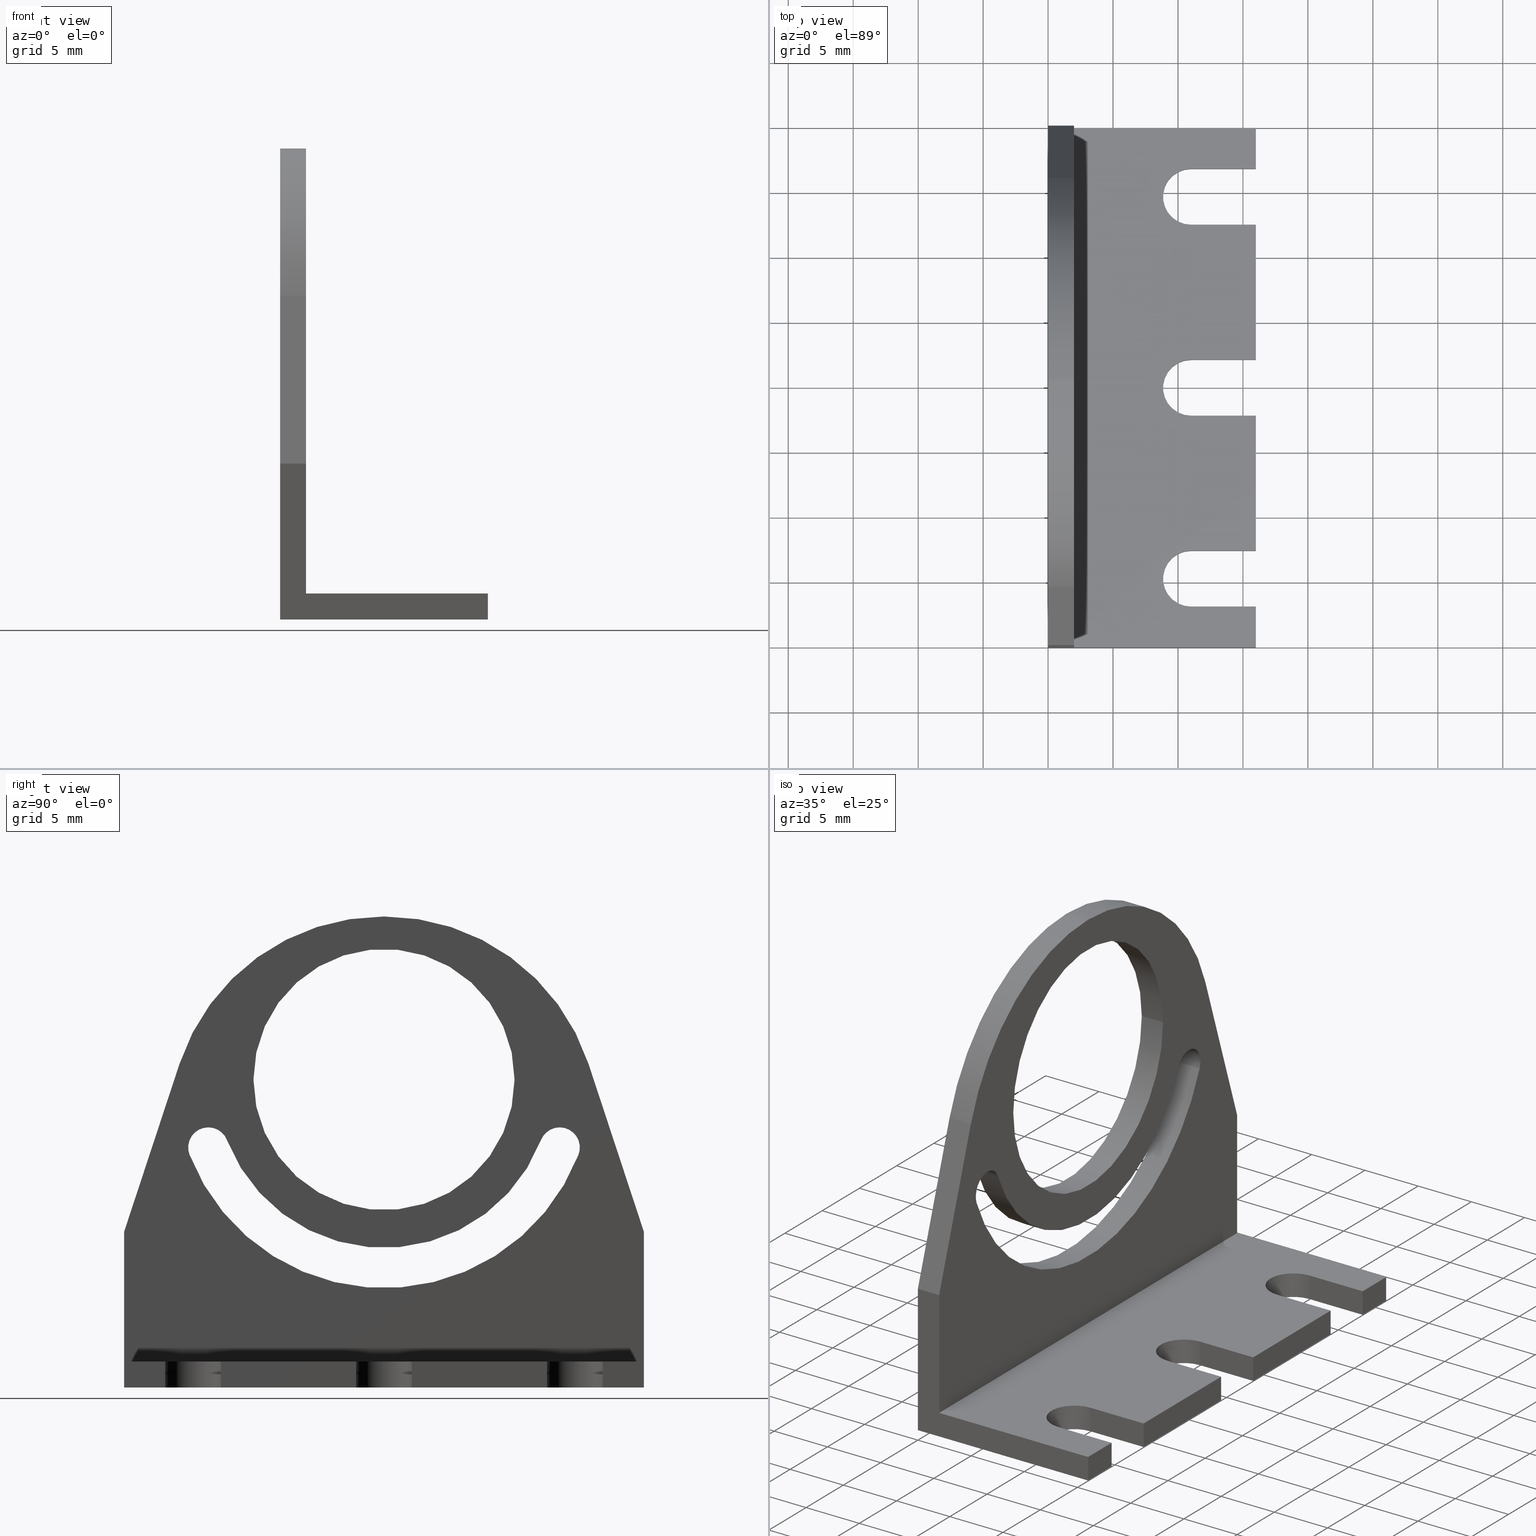
[diagram: canonical four-view strip — front | top / right | iso, engineering-drawing reading convention]
A machine part, canonical four-view strip (front | top / right | iso — engineering-drawing reading convention). The complete STEP part file that produces these views, byte-faithful:
ISO-10303-21;
HEADER;
FILE_DESCRIPTION(('Creo Elements/Direct Modeling STEP Export'),'2;1');
FILE_NAME(
'C:/temp/JobSpoolerServerData/JobServer Files/aaffb14d-8220-4899-98a6-cd
3d9a9d57d0/work/output/model.stp','2019-07-30T19:59:24',(''),(''),
'Creo Elements/Direct Modeling STEP processor for AP214 (Solid Model)',
'Creo Elements/Direct Modeling 20.1A  29-Sep-2018 (C) Parametric Technol
ogy GmbH','');
FILE_SCHEMA(('AUTOMOTIVE_DESIGN { 1 0 10303 214 1 1 1 1 }'));
ENDSEC;
DATA;
#10=CARTESIAN_POINT('',(-20.,-2.,16.));
#20=DIRECTION('',(3.46944695195361E-16,-1.31089490766937E-16,1.));
#30=DIRECTION('',(1.,0.,-3.46944695195361E-16));
#40=AXIS2_PLACEMENT_3D('',#10,#20,#30);
#50=PLANE('',#40);
#60=CARTESIAN_POINT('',(12.55,0.,16.));
#70=DIRECTION('',(2.46519032881566E-32,1.,1.31089490766937E-16));
#80=VECTOR('',#70,1.);
#90=LINE('',#60,#80);
#100=CARTESIAN_POINT('',(12.55,-2.,16.));
#110=VERTEX_POINT('',#100);
#120=CARTESIAN_POINT('',(12.55,-1.82477793007524E-15,16.));
#130=VERTEX_POINT('',#120);
#140=EDGE_CURVE('',#110,#130,#90,.T.);
#150=ORIENTED_EDGE('',*,*,#140,.T.);
#160=CARTESIAN_POINT('',(0.,-2.,16.));
#170=DIRECTION('',(1.,7.39557098644699E-32,-3.46944695195361E-16));
#180=VECTOR('',#170,1.);
#190=LINE('',#160,#180);
#200=CARTESIAN_POINT('',(2.15,-2.,16.));
#210=VERTEX_POINT('',#200);
#220=EDGE_CURVE('',#210,#110,#190,.T.);
#230=ORIENTED_EDGE('',*,*,#220,.T.);
#240=CARTESIAN_POINT('',(2.15,0.,16.));
#250=DIRECTION('',(2.46519032881566E-32,1.,1.31089490766937E-16));
#260=VECTOR('',#250,1.);
#270=LINE('',#240,#260);
#280=CARTESIAN_POINT('',(2.15,-1.82477793007524E-15,16.));
#290=VERTEX_POINT('',#280);
#300=EDGE_CURVE('',#210,#290,#270,.T.);
#310=ORIENTED_EDGE('',*,*,#300,.F.);
#320=CARTESIAN_POINT('',(0.,-1.82477793007524E-15,16.));
#330=DIRECTION('',(1.,7.39557098644699E-32,-3.46944695195361E-16));
#340=VECTOR('',#330,1.);
#350=LINE('',#320,#340);
#360=EDGE_CURVE('',#290,#130,#350,.T.);
#370=ORIENTED_EDGE('',*,*,#360,.F.);
#380=EDGE_LOOP('',(#370,#310,#230,#150));
#390=FACE_OUTER_BOUND('',#380,.T.);
#400=ADVANCED_FACE('',(#390),#50,.T.);
#410=COLOUR_RGB('',0.69803923368454,0.725490212440491,0.725490212440491)
;
#420=FILL_AREA_STYLE_COLOUR('',#410);
#430=FILL_AREA_STYLE('',(#420));
#440=SURFACE_STYLE_FILL_AREA(#430);
#450=SURFACE_SIDE_STYLE('',(#440));
#460=SURFACE_STYLE_USAGE(.BOTH.,#450);
#470=PRESENTATION_STYLE_ASSIGNMENT((#460));
#480=CARTESIAN_POINT('',(20.,3.65768059373703E-17,1.80088514248714));
#490=DIRECTION('',(1.70553012815438E-32,1.,1.31089490766937E-16));
#500=DIRECTION('',(0.,-1.31089490766937E-16,1.));
#510=AXIS2_PLACEMENT_3D('',#480,#490,#500);
#520=PLANE('',#510);
#530=CARTESIAN_POINT('',(0.,-1.82477793007524E-15,16.));
#540=DIRECTION('',(1.,7.39557098644699E-32,-3.46944695195361E-16));
#550=VECTOR('',#540,1.);
#560=LINE('',#530,#550);
#570=CARTESIAN_POINT('',(16.85,-1.82477793007524E-15,16.));
#580=VERTEX_POINT('',#570);
#590=CARTESIAN_POINT('',(20.,-1.82477793007524E-15,16.));
#600=VERTEX_POINT('',#590);
#610=EDGE_CURVE('',#580,#600,#560,.T.);
#620=ORIENTED_EDGE('',*,*,#610,.T.);
#630=CARTESIAN_POINT('',(16.85,2.72653922195752E-16,0.));
#640=DIRECTION('',(0.,1.31089490766937E-16,-1.));
#650=VECTOR('',#640,1.);
#660=LINE('',#630,#650);
#670=CARTESIAN_POINT('',(16.85,-1.16933047624056E-15,11.));
#680=VERTEX_POINT('',#670);
#690=EDGE_CURVE('',#580,#680,#660,.T.);
#700=ORIENTED_EDGE('',*,*,#690,.F.);
#710=CARTESIAN_POINT('',(14.7,-1.66533453693773E-15,11.));
#720=DIRECTION('',(-3.42381711077589E-32,-1.,-1.31089490766937E-16));
#730=DIRECTION('',(-1.,1.00900813458502E-30,-7.43591235097779E-15));
#740=AXIS2_PLACEMENT_3D('',#710,#720,#730);
#750=CIRCLE('',#740,2.15);
#760=CARTESIAN_POINT('',(12.55,-1.22124532708767E-15,11.));
#770=VERTEX_POINT('',#760);
#780=EDGE_CURVE('',#770,#680,#750,.T.);
#790=ORIENTED_EDGE('',*,*,#780,.T.);
#800=CARTESIAN_POINT('',(12.55,2.72653922195752E-16,0.));
#810=DIRECTION('',(-2.42618667968785E-16,-1.31089490766937E-16,1.));
#820=VECTOR('',#810,1.);
#830=LINE('',#800,#820);
#840=EDGE_CURVE('',#770,#130,#830,.T.);
#850=ORIENTED_EDGE('',*,*,#840,.F.);
#860=ORIENTED_EDGE('',*,*,#360,.T.);
#870=CARTESIAN_POINT('',(2.15,2.72653922195753E-16,0.));
#880=DIRECTION('',(-2.60208521396521E-16,-1.31089490766937E-16,1.));
#890=VECTOR('',#880,1.);
#900=LINE('',#870,#890);
#910=CARTESIAN_POINT('',(2.15,-1.22124532708767E-15,11.));
#920=VERTEX_POINT('',#910);
#930=EDGE_CURVE('',#920,#290,#900,.T.);
#940=ORIENTED_EDGE('',*,*,#930,.T.);
#950=CARTESIAN_POINT('',(1.70553012815438E-32,-1.66533453693773E-15,11.)
);
#960=DIRECTION('',(0.,-1.,-1.31089490766937E-16));
#970=DIRECTION('',(-1.,0.,0.));
#980=AXIS2_PLACEMENT_3D('',#950,#960,#970);
#990=CIRCLE('',#980,2.15);
#1000=CARTESIAN_POINT('',(-2.15,-1.22124532708767E-15,11.));
#1010=VERTEX_POINT('',#1000);
#1020=EDGE_CURVE('',#1010,#920,#990,.T.);
#1030=ORIENTED_EDGE('',*,*,#1020,.T.);
#1040=CARTESIAN_POINT('',(-2.15,2.72653922195753E-16,0.));
#1050=DIRECTION('',(3.46944695195362E-16,1.31089490766937E-16,-1.));
#1060=VECTOR('',#1050,1.);
#1070=LINE('',#1040,#1060);
#1080=CARTESIAN_POINT('',(-2.15000000000001,-1.82477793007524E-15,16.));
#1090=VERTEX_POINT('',#1080);
#1100=EDGE_CURVE('',#1090,#1010,#1070,.T.);
#1110=ORIENTED_EDGE('',*,*,#1100,.T.);
#1120=CARTESIAN_POINT('',(0.,-1.82477793007524E-15,16.));
#1130=DIRECTION('',(1.,7.39557098644699E-32,-3.46944695195361E-16));
#1140=VECTOR('',#1130,1.);
#1150=LINE('',#1120,#1140);
#1160=CARTESIAN_POINT('',(-12.55,-1.82477793007524E-15,16.));
#1170=VERTEX_POINT('',#1160);
#1180=EDGE_CURVE('',#1170,#1090,#1150,.T.);
#1190=ORIENTED_EDGE('',*,*,#1180,.T.);
#1200=CARTESIAN_POINT('',(-12.55,2.72653922195753E-16,0.));
#1210=DIRECTION('',(0.,-1.31089490766937E-16,1.));
#1220=VECTOR('',#1210,1.);
#1230=LINE('',#1200,#1220);
#1240=CARTESIAN_POINT('',(-12.55,-1.22124532708767E-15,11.));
#1250=VERTEX_POINT('',#1240);
#1260=EDGE_CURVE('',#1250,#1170,#1230,.T.);
#1270=ORIENTED_EDGE('',*,*,#1260,.T.);
#1280=CARTESIAN_POINT('',(-14.7,-1.66533453693773E-15,11.));
#1290=DIRECTION('',(-2.99235785542732E-32,-1.,-1.31089490766937E-16));
#1300=DIRECTION('',(-1.,-3.76084850163506E-30,2.89174369204692E-14));
#1310=AXIS2_PLACEMENT_3D('',#1280,#1290,#1300);
#1320=CIRCLE('',#1310,2.15);
#1330=CARTESIAN_POINT('',(-16.85,-1.22124532708767E-15,11.));
#1340=VERTEX_POINT('',#1330);
#1350=EDGE_CURVE('',#1340,#1250,#1320,.T.);
#1360=ORIENTED_EDGE('',*,*,#1350,.T.);
#1370=CARTESIAN_POINT('',(-16.85,2.72653922195753E-16,0.));
#1380=DIRECTION('',(0.,1.31089490766937E-16,-1.));
#1390=VECTOR('',#1380,1.);
#1400=LINE('',#1370,#1390);
#1410=CARTESIAN_POINT('',(-16.85,-1.82477793007524E-15,16.));
#1420=VERTEX_POINT('',#1410);
#1430=EDGE_CURVE('',#1420,#1340,#1400,.T.);
#1440=ORIENTED_EDGE('',*,*,#1430,.T.);
#1450=CARTESIAN_POINT('',(0.,-1.82477793007524E-15,16.));
#1460=DIRECTION('',(1.,7.39557098644699E-32,-3.46944695195361E-16));
#1470=VECTOR('',#1460,1.);
#1480=LINE('',#1450,#1470);
#1490=CARTESIAN_POINT('',(-20.,-1.82477793007524E-15,16.));
#1500=VERTEX_POINT('',#1490);
#1510=EDGE_CURVE('',#1500,#1420,#1480,.T.);
#1520=ORIENTED_EDGE('',*,*,#1510,.T.);
#1530=CARTESIAN_POINT('',(-20.,2.72653922195753E-16,0.));
#1540=DIRECTION('',(0.,-1.31089490766937E-16,1.));
#1550=VECTOR('',#1540,1.);
#1560=LINE('',#1530,#1550);
#1570=CARTESIAN_POINT('',(-20.,1.0474940661879E-17,2.));
#1580=VERTEX_POINT('',#1570);
#1590=EDGE_CURVE('',#1580,#1500,#1560,.T.);
#1600=ORIENTED_EDGE('',*,*,#1590,.T.);
#1610=CARTESIAN_POINT('',(0.,1.04749406618786E-17,2.));
#1620=DIRECTION('',(-1.,1.70553012815438E-32,0.));
#1630=VECTOR('',#1620,1.);
#1640=LINE('',#1610,#1630);
#1650=CARTESIAN_POINT('',(20.,1.04749406618783E-17,2.));
#1660=VERTEX_POINT('',#1650);
#1670=EDGE_CURVE('',#1660,#1580,#1640,.T.);
#1680=ORIENTED_EDGE('',*,*,#1670,.T.);
#1690=CARTESIAN_POINT('',(20.,2.72653922195752E-16,0.));
#1700=DIRECTION('',(0.,1.31089490766937E-16,-1.));
#1710=VECTOR('',#1700,1.);
#1720=LINE('',#1690,#1710);
#1730=EDGE_CURVE('',#600,#1660,#1720,.T.);
#1740=ORIENTED_EDGE('',*,*,#1730,.T.);
#1750=EDGE_LOOP('',(#1740,#1680,#1600,#1520,#1440,#1360,#1270,#1190,
#1110,#1030,#940,#860,#850,#790,#700,#620));
#1760=FACE_OUTER_BOUND('',#1750,.T.);
#1770=ADVANCED_FACE('',(#1760),#520,.T.);
#1780=COLOUR_RGB('',0.69803923368454,0.725490212440491,0.725490212440491
);
#1790=FILL_AREA_STYLE_COLOUR('',#1780);
#1800=FILL_AREA_STYLE('',(#1790));
#1810=SURFACE_STYLE_FILL_AREA(#1800);
#1820=SURFACE_SIDE_STYLE('',(#1810));
#1830=SURFACE_STYLE_USAGE(.BOTH.,#1820);
#1840=PRESENTATION_STYLE_ASSIGNMENT((#1830));
#1850=CARTESIAN_POINT('',(2.15,-1.,1.80088514248714));
#1860=DIRECTION('',(1.,-5.11659038446314E-32,2.60208521396521E-16));
#1870=DIRECTION('',(2.60208521396521E-16,1.31188462870746E-16,-1.));
#1880=AXIS2_PLACEMENT_3D('',#1850,#1860,#1870);
#1890=PLANE('',#1880);
#1900=ORIENTED_EDGE('',*,*,#300,.T.);
#1910=CARTESIAN_POINT('',(2.15,-2.,0.));
#1920=DIRECTION('',(-2.60208521396521E-16,-1.31089490766937E-16,1.));
#1930=VECTOR('',#1920,1.);
#1940=LINE('',#1910,#1930);
#1950=CARTESIAN_POINT('',(2.15,-2.,11.));
#1960=VERTEX_POINT('',#1950);
#1970=EDGE_CURVE('',#1960,#210,#1940,.T.);
#1980=ORIENTED_EDGE('',*,*,#1970,.T.);
#1990=CARTESIAN_POINT('',(2.15,-2.,11.));
#2000=DIRECTION('',(0.,1.,0.));
#2010=VECTOR('',#2000,1.);
#2020=LINE('',#1990,#2010);
#2030=EDGE_CURVE('',#1960,#920,#2020,.T.);
#2040=ORIENTED_EDGE('',*,*,#2030,.F.);
#2050=ORIENTED_EDGE('',*,*,#930,.F.);
#2060=EDGE_LOOP('',(#2050,#2040,#1980,#1900));
#2070=FACE_OUTER_BOUND('',#2060,.T.);
#2080=ADVANCED_FACE('',(#2070),#1890,.F.);
#2090=COLOUR_RGB('',0.69803923368454,0.725490212440491,0.725490212440491
);
#2100=FILL_AREA_STYLE_COLOUR('',#2090);
#2110=FILL_AREA_STYLE('',(#2100));
#2120=SURFACE_STYLE_FILL_AREA(#2110);
#2130=SURFACE_SIDE_STYLE('',(#2120));
#2140=SURFACE_STYLE_USAGE(.BOTH.,#2130);
#2150=PRESENTATION_STYLE_ASSIGNMENT((#2140));
#2160=CARTESIAN_POINT('',(20.,-2.,1.80088514248714));
#2170=DIRECTION('',(1.70553012815438E-32,1.,1.31089490766937E-16));
#2180=DIRECTION('',(-2.01027989143632E-51,-1.31089490766937E-16,1.));
#2190=AXIS2_PLACEMENT_3D('',#2160,#2170,#2180);
#2200=PLANE('',#2190);
#2210=CARTESIAN_POINT('',(20.,-2.,0.));
#2220=DIRECTION('',(0.,1.31089490766937E-16,-1.));
#2230=VECTOR('',#2220,1.);
#2240=LINE('',#2210,#2230);
#2250=CARTESIAN_POINT('',(20.,-2.,16.));
#2260=VERTEX_POINT('',#2250);
#2270=CARTESIAN_POINT('',(20.,-2.,0.));
#2280=VERTEX_POINT('',#2270);
#2290=EDGE_CURVE('',#2260,#2280,#2240,.T.);
#2300=ORIENTED_EDGE('',*,*,#2290,.F.);
#2310=CARTESIAN_POINT('',(0.,-2.,0.));
#2320=DIRECTION('',(-1.,1.70553012815438E-32,0.));
#2330=VECTOR('',#2320,1.);
#2340=LINE('',#2310,#2330);
#2350=CARTESIAN_POINT('',(-20.,-2.,0.));
#2360=VERTEX_POINT('',#2350);
#2370=EDGE_CURVE('',#2280,#2360,#2340,.T.);
#2380=ORIENTED_EDGE('',*,*,#2370,.F.);
#2390=CARTESIAN_POINT('',(-20.,-2.,0.));
#2400=DIRECTION('',(0.,-1.31089490766937E-16,1.));
#2410=VECTOR('',#2400,1.);
#2420=LINE('',#2390,#2410);
#2430=CARTESIAN_POINT('',(-20.,-2.,16.));
#2440=VERTEX_POINT('',#2430);
#2450=EDGE_CURVE('',#2360,#2440,#2420,.T.);
#2460=ORIENTED_EDGE('',*,*,#2450,.F.);
#2470=CARTESIAN_POINT('',(0.,-2.,16.));
#2480=DIRECTION('',(1.,7.39557098644699E-32,-3.46944695195361E-16));
#2490=VECTOR('',#2480,1.);
#2500=LINE('',#2470,#2490);
#2510=CARTESIAN_POINT('',(-16.85,-2.,16.));
#2520=VERTEX_POINT('',#2510);
#2530=EDGE_CURVE('',#2440,#2520,#2500,.T.);
#2540=ORIENTED_EDGE('',*,*,#2530,.F.);
#2550=CARTESIAN_POINT('',(-16.85,-2.,0.));
#2560=DIRECTION('',(0.,1.31089490766937E-16,-1.));
#2570=VECTOR('',#2560,1.);
#2580=LINE('',#2550,#2570);
#2590=CARTESIAN_POINT('',(-16.85,-2.,11.));
#2600=VERTEX_POINT('',#2590);
#2610=EDGE_CURVE('',#2520,#2600,#2580,.T.);
#2620=ORIENTED_EDGE('',*,*,#2610,.F.);
#2630=CARTESIAN_POINT('',(-14.7,-2.,11.));
#2640=DIRECTION('',(0.,1.,1.31089490766937E-16));
#2650=DIRECTION('',(1.,0.,0.));
#2660=AXIS2_PLACEMENT_3D('',#2630,#2640,#2650);
#2670=CIRCLE('',#2660,2.15);
#2680=CARTESIAN_POINT('',(-12.55,-2.,11.));
#2690=VERTEX_POINT('',#2680);
#2700=EDGE_CURVE('',#2690,#2600,#2670,.T.);
#2710=ORIENTED_EDGE('',*,*,#2700,.T.);
#2720=CARTESIAN_POINT('',(-12.55,-2.,0.));
#2730=DIRECTION('',(0.,-1.31089490766937E-16,1.));
#2740=VECTOR('',#2730,1.);
#2750=LINE('',#2720,#2740);
#2760=CARTESIAN_POINT('',(-12.55,-2.,16.));
#2770=VERTEX_POINT('',#2760);
#2780=EDGE_CURVE('',#2690,#2770,#2750,.T.);
#2790=ORIENTED_EDGE('',*,*,#2780,.F.);
#2800=CARTESIAN_POINT('',(0.,-2.,16.));
#2810=DIRECTION('',(1.,7.39557098644699E-32,-3.46944695195361E-16));
#2820=VECTOR('',#2810,1.);
#2830=LINE('',#2800,#2820);
#2840=CARTESIAN_POINT('',(-2.15000000000001,-2.,16.));
#2850=VERTEX_POINT('',#2840);
#2860=EDGE_CURVE('',#2770,#2850,#2830,.T.);
#2870=ORIENTED_EDGE('',*,*,#2860,.F.);
#2880=CARTESIAN_POINT('',(-2.15,-2.,0.));
#2890=DIRECTION('',(3.46944695195362E-16,1.31089490766937E-16,-1.));
#2900=VECTOR('',#2890,1.);
#2910=LINE('',#2880,#2900);
#2920=CARTESIAN_POINT('',(-2.15,-2.,11.));
#2930=VERTEX_POINT('',#2920);
#2940=EDGE_CURVE('',#2850,#2930,#2910,.T.);
#2950=ORIENTED_EDGE('',*,*,#2940,.F.);
#2960=CARTESIAN_POINT('',(-1.70553012815438E-32,-2.,11.));
#2970=DIRECTION('',(0.,1.,1.31089490766937E-16));
#2980=DIRECTION('',(1.,0.,0.));
#2990=AXIS2_PLACEMENT_3D('',#2960,#2970,#2980);
#3000=CIRCLE('',#2990,2.15);
#3010=EDGE_CURVE('',#1960,#2930,#3000,.T.);
#3020=ORIENTED_EDGE('',*,*,#3010,.T.);
#3030=ORIENTED_EDGE('',*,*,#1970,.F.);
#3040=ORIENTED_EDGE('',*,*,#220,.F.);
#3050=CARTESIAN_POINT('',(12.55,-2.,0.));
#3060=DIRECTION('',(-2.42618667968785E-16,-1.31089490766937E-16,1.));
#3070=VECTOR('',#3060,1.);
#3080=LINE('',#3050,#3070);
#3090=CARTESIAN_POINT('',(12.55,-2.,11.));
#3100=VERTEX_POINT('',#3090);
#3110=EDGE_CURVE('',#3100,#110,#3080,.T.);
#3120=ORIENTED_EDGE('',*,*,#3110,.T.);
#3130=CARTESIAN_POINT('',(14.7,-2.,11.));
#3140=DIRECTION('',(-1.94953992695451E-30,1.,1.31089490766937E-16));
#3150=DIRECTION('',(1.,0.,1.48718247019556E-14));
#3160=AXIS2_PLACEMENT_3D('',#3130,#3140,#3150);
#3170=CIRCLE('',#3160,2.15);
#3180=CARTESIAN_POINT('',(16.85,-2.,11.));
#3190=VERTEX_POINT('',#3180);
#3200=EDGE_CURVE('',#3190,#3100,#3170,.T.);
#3210=ORIENTED_EDGE('',*,*,#3200,.T.);
#3220=CARTESIAN_POINT('',(16.85,-2.,0.));
#3230=DIRECTION('',(0.,1.31089490766937E-16,-1.));
#3240=VECTOR('',#3230,1.);
#3250=LINE('',#3220,#3240);
#3260=CARTESIAN_POINT('',(16.85,-2.,16.));
#3270=VERTEX_POINT('',#3260);
#3280=EDGE_CURVE('',#3270,#3190,#3250,.T.);
#3290=ORIENTED_EDGE('',*,*,#3280,.T.);
#3300=CARTESIAN_POINT('',(0.,-2.,16.));
#3310=DIRECTION('',(1.,7.39557098644699E-32,-3.46944695195361E-16));
#3320=VECTOR('',#3310,1.);
#3330=LINE('',#3300,#3320);
#3340=EDGE_CURVE('',#3270,#2260,#3330,.T.);
#3350=ORIENTED_EDGE('',*,*,#3340,.F.);
#3360=EDGE_LOOP('',(#3350,#3290,#3210,#3120,#3040,#3030,#3020,#2950,
#2870,#2790,#2710,#2620,#2540,#2460,#2380,#2300));
#3370=FACE_OUTER_BOUND('',#3360,.T.);
#3380=ADVANCED_FACE('',(#3370),#2200,.F.);
#3390=COLOUR_RGB('',0.69803923368454,0.725490212440491,0.725490212440491
);
#3400=FILL_AREA_STYLE_COLOUR('',#3390);
#3410=FILL_AREA_STYLE('',(#3400));
#3420=SURFACE_STYLE_FILL_AREA(#3410);
#3430=SURFACE_SIDE_STYLE('',(#3420));
#3440=SURFACE_STYLE_USAGE(.BOTH.,#3430);
#3450=PRESENTATION_STYLE_ASSIGNMENT((#3440));
#3460=CARTESIAN_POINT('',(0.,-1.,11.));
#3470=DIRECTION('',(1.70553012815438E-32,1.,1.31089490766937E-16));
#3480=DIRECTION('',(-5.15641020167794E-49,-1.31089490766937E-16,1.));
#3490=AXIS2_PLACEMENT_3D('',#3460,#3470,#3480);
#3500=CYLINDRICAL_SURFACE('',#3490,2.15);
#3510=ORIENTED_EDGE('',*,*,#2030,.T.);
#3520=ORIENTED_EDGE('',*,*,#3010,.F.);
#3530=CARTESIAN_POINT('',(-2.15,-1.66533453693773E-15,11.));
#3540=DIRECTION('',(0.,-1.,0.));
#3550=VECTOR('',#3540,1.);
#3560=LINE('',#3530,#3550);
#3570=EDGE_CURVE('',#1010,#2930,#3560,.T.);
#3580=ORIENTED_EDGE('',*,*,#3570,.T.);
#3590=ORIENTED_EDGE('',*,*,#1020,.F.);
#3600=EDGE_LOOP('',(#3590,#3580,#3520,#3510));
#3610=FACE_OUTER_BOUND('',#3600,.T.);
#3620=ADVANCED_FACE('',(#3610),#3500,.F.);
#3630=COLOUR_RGB('',0.69803923368454,0.725490212440491,0.725490212440491
);
#3640=FILL_AREA_STYLE_COLOUR('',#3630);
#3650=FILL_AREA_STYLE('',(#3640));
#3660=SURFACE_STYLE_FILL_AREA(#3650);
#3670=SURFACE_SIDE_STYLE('',(#3660));
#3680=SURFACE_STYLE_USAGE(.BOTH.,#3670);
#3690=PRESENTATION_STYLE_ASSIGNMENT((#3680));
#3700=CARTESIAN_POINT('',(12.55,-1.,1.80088514248714));
#3710=DIRECTION('',(1.,-4.88600589161244E-32,2.42618667968785E-16));
#3720=DIRECTION('',(2.42618667968785E-16,1.31188462870746E-16,-1.));
#3730=AXIS2_PLACEMENT_3D('',#3700,#3710,#3720);
#3740=PLANE('',#3730);
#3750=ORIENTED_EDGE('',*,*,#840,.T.);
#3760=CARTESIAN_POINT('',(12.55,-1.66533453693773E-15,11.));
#3770=DIRECTION('',(0.,-1.,0.));
#3780=VECTOR('',#3770,1.);
#3790=LINE('',#3760,#3780);
#3800=EDGE_CURVE('',#770,#3100,#3790,.T.);
#3810=ORIENTED_EDGE('',*,*,#3800,.F.);
#3820=ORIENTED_EDGE('',*,*,#3110,.F.);
#3830=ORIENTED_EDGE('',*,*,#140,.F.);
#3840=EDGE_LOOP('',(#3830,#3820,#3810,#3750));
#3850=FACE_OUTER_BOUND('',#3840,.T.);
#3860=ADVANCED_FACE('',(#3850),#3740,.T.);
#3870=COLOUR_RGB('',0.69803923368454,0.725490212440491,0.725490212440491
);
#3880=FILL_AREA_STYLE_COLOUR('',#3870);
#3890=FILL_AREA_STYLE('',(#3880));
#3900=SURFACE_STYLE_FILL_AREA(#3890);
#3910=SURFACE_SIDE_STYLE('',(#3900));
#3920=SURFACE_STYLE_USAGE(.BOTH.,#3910);
#3930=PRESENTATION_STYLE_ASSIGNMENT((#3920));
#3940=CARTESIAN_POINT('',(14.7,-1.,11.));
#3950=DIRECTION('',(1.70553012815438E-32,1.,1.31089490766937E-16));
#3960=DIRECTION('',(-5.15641020167794E-49,-1.31089490766937E-16,1.));
#3970=AXIS2_PLACEMENT_3D('',#3940,#3950,#3960);
#3980=CYLINDRICAL_SURFACE('',#3970,2.15);
#3990=ORIENTED_EDGE('',*,*,#3200,.F.);
#4000=ORIENTED_EDGE('',*,*,#3800,.T.);
#4010=ORIENTED_EDGE('',*,*,#780,.F.);
#4020=CARTESIAN_POINT('',(16.85,-2.,11.));
#4030=DIRECTION('',(0.,1.,0.));
#4040=VECTOR('',#4030,1.);
#4050=LINE('',#4020,#4040);
#4060=EDGE_CURVE('',#3190,#680,#4050,.T.);
#4070=ORIENTED_EDGE('',*,*,#4060,.T.);
#4080=EDGE_LOOP('',(#4070,#4010,#4000,#3990));
#4090=FACE_OUTER_BOUND('',#4080,.T.);
#4100=ADVANCED_FACE('',(#4090),#3980,.F.);
#4110=COLOUR_RGB('',0.69803923368454,0.725490212440491,0.725490212440491
);
#4120=FILL_AREA_STYLE_COLOUR('',#4110);
#4130=FILL_AREA_STYLE('',(#4120));
#4140=SURFACE_STYLE_FILL_AREA(#4130);
#4150=SURFACE_SIDE_STYLE('',(#4140));
#4160=SURFACE_STYLE_USAGE(.BOTH.,#4150);
#4170=PRESENTATION_STYLE_ASSIGNMENT((#4160));
#4180=CARTESIAN_POINT('',(16.85,-1.,1.80088514248714));
#4190=DIRECTION('',(-1.,1.70553012815438E-32,2.23577075987426E-48));
#4200=DIRECTION('',(-1.68799904893597E-51,-1.31188462870746E-16,1.));
#4210=AXIS2_PLACEMENT_3D('',#4180,#4190,#4200);
#4220=PLANE('',#4210);
#4230=CARTESIAN_POINT('',(16.85,0.,16.));
#4240=DIRECTION('',(2.46519032881566E-32,1.,1.31089490766937E-16));
#4250=VECTOR('',#4240,1.);
#4260=LINE('',#4230,#4250);
#4270=EDGE_CURVE('',#3270,#580,#4260,.T.);
#4280=ORIENTED_EDGE('',*,*,#4270,.T.);
#4290=ORIENTED_EDGE('',*,*,#3280,.F.);
#4300=ORIENTED_EDGE('',*,*,#4060,.F.);
#4310=ORIENTED_EDGE('',*,*,#690,.T.);
#4320=EDGE_LOOP('',(#4310,#4300,#4290,#4280));
#4330=FACE_OUTER_BOUND('',#4320,.T.);
#4340=ADVANCED_FACE('',(#4330),#4220,.T.);
#4350=COLOUR_RGB('',0.69803923368454,0.725490212440491,0.725490212440491
);
#4360=FILL_AREA_STYLE_COLOUR('',#4350);
#4370=FILL_AREA_STYLE('',(#4360));
#4380=SURFACE_STYLE_FILL_AREA(#4370);
#4390=SURFACE_SIDE_STYLE('',(#4380));
#4400=SURFACE_STYLE_USAGE(.BOTH.,#4390);
#4410=PRESENTATION_STYLE_ASSIGNMENT((#4400));
#4420=CARTESIAN_POINT('',(-20.,-2.,16.));
#4430=DIRECTION('',(3.46944695195361E-16,-1.31089490766937E-16,1.));
#4440=DIRECTION('',(1.,0.,-3.46944695195361E-16));
#4450=AXIS2_PLACEMENT_3D('',#4420,#4430,#4440);
#4460=PLANE('',#4450);
#4470=CARTESIAN_POINT('',(-2.15000000000001,0.,16.));
#4480=DIRECTION('',(2.46519032881566E-32,1.,1.31089490766937E-16));
#4490=VECTOR('',#4480,1.);
#4500=LINE('',#4470,#4490);
#4510=EDGE_CURVE('',#2850,#1090,#4500,.T.);
#4520=ORIENTED_EDGE('',*,*,#4510,.T.);
#4530=ORIENTED_EDGE('',*,*,#2860,.T.);
#4540=CARTESIAN_POINT('',(-12.55,0.,16.));
#4550=DIRECTION('',(2.46519032881566E-32,1.,1.31089490766937E-16));
#4560=VECTOR('',#4550,1.);
#4570=LINE('',#4540,#4560);
#4580=EDGE_CURVE('',#2770,#1170,#4570,.T.);
#4590=ORIENTED_EDGE('',*,*,#4580,.F.);
#4600=ORIENTED_EDGE('',*,*,#1180,.F.);
#4610=EDGE_LOOP('',(#4600,#4590,#4530,#4520));
#4620=FACE_OUTER_BOUND('',#4610,.T.);
#4630=ADVANCED_FACE('',(#4620),#4460,.T.);
#4640=COLOUR_RGB('',0.69803923368454,0.725490212440491,0.725490212440491
);
#4650=FILL_AREA_STYLE_COLOUR('',#4640);
#4660=FILL_AREA_STYLE('',(#4650));
#4670=SURFACE_STYLE_FILL_AREA(#4660);
#4680=SURFACE_SIDE_STYLE('',(#4670));
#4690=SURFACE_STYLE_USAGE(.BOTH.,#4680);
#4700=PRESENTATION_STYLE_ASSIGNMENT((#4690));
#4710=CARTESIAN_POINT('',(-20.,-2.,16.));
#4720=DIRECTION('',(3.46944695195361E-16,-1.31089490766937E-16,1.));
#4730=DIRECTION('',(1.,0.,-3.46944695195361E-16));
#4740=AXIS2_PLACEMENT_3D('',#4710,#4720,#4730);
#4750=PLANE('',#4740);
#4760=ORIENTED_EDGE('',*,*,#3340,.T.);
#4770=ORIENTED_EDGE('',*,*,#4270,.F.);
#4780=ORIENTED_EDGE('',*,*,#610,.F.);
#4790=CARTESIAN_POINT('',(20.,0.,16.));
#4800=DIRECTION('',(0.,-1.,-1.31089490766937E-16));
#4810=VECTOR('',#4800,1.);
#4820=LINE('',#4790,#4810);
#4830=EDGE_CURVE('',#600,#2260,#4820,.T.);
#4840=ORIENTED_EDGE('',*,*,#4830,.F.);
#4850=EDGE_LOOP('',(#4840,#4780,#4770,#4760));
#4860=FACE_OUTER_BOUND('',#4850,.T.);
#4870=ADVANCED_FACE('',(#4860),#4750,.T.);
#4880=COLOUR_RGB('',0.69803923368454,0.725490212440491,0.725490212440491
);
#4890=FILL_AREA_STYLE_COLOUR('',#4880);
#4900=FILL_AREA_STYLE('',(#4890));
#4910=SURFACE_STYLE_FILL_AREA(#4900);
#4920=SURFACE_SIDE_STYLE('',(#4910));
#4930=SURFACE_STYLE_USAGE(.BOTH.,#4920);
#4940=PRESENTATION_STYLE_ASSIGNMENT((#4930));
#4950=CARTESIAN_POINT('',(0.,21.7,1.));
#4960=DIRECTION('',(0.,0.,-1.));
#4970=DIRECTION('',(-1.,0.,0.));
#4980=AXIS2_PLACEMENT_3D('',#4950,#4960,#4970);
#4990=CYLINDRICAL_SURFACE('',#4980,16.05);
#5000=CARTESIAN_POINT('',(-14.9702258308515,15.9125274451358,2.));
#5010=DIRECTION('',(0.,0.,-1.));
#5020=VECTOR('',#5010,1.);
#5030=LINE('',#5000,#5020);
#5040=CARTESIAN_POINT('',(-14.9702258308515,15.9125274451357,2.));
#5050=VERTEX_POINT('',#5040);
#5060=CARTESIAN_POINT('',(-14.9702258308515,15.9125274451357,0.));
#5070=VERTEX_POINT('',#5060);
#5080=EDGE_CURVE('',#5050,#5070,#5030,.T.);
#5090=ORIENTED_EDGE('',*,*,#5080,.F.);
#5100=CARTESIAN_POINT('',(0.,21.7,0.));
#5110=DIRECTION('',(0.,0.,1.));
#5120=DIRECTION('',(-0.932724350831866,-0.360590190334227,0.));
#5130=AXIS2_PLACEMENT_3D('',#5100,#5110,#5120);
#5140=CIRCLE('',#5130,16.05);
#5150=CARTESIAN_POINT('',(14.9702258308515,15.9125274451357,0.));
#5160=VERTEX_POINT('',#5150);
#5170=EDGE_CURVE('',#5070,#5160,#5140,.T.);
#5180=ORIENTED_EDGE('',*,*,#5170,.F.);
#5190=CARTESIAN_POINT('',(14.9702258308515,15.9125274451358,0.));
#5200=DIRECTION('',(0.,0.,1.));
#5210=VECTOR('',#5200,1.);
#5220=LINE('',#5190,#5210);
#5230=CARTESIAN_POINT('',(14.9702258308515,15.9125274451357,2.));
#5240=VERTEX_POINT('',#5230);
#5250=EDGE_CURVE('',#5160,#5240,#5220,.T.);
#5260=ORIENTED_EDGE('',*,*,#5250,.F.);
#5270=CARTESIAN_POINT('',(0.,21.7,2.));
#5280=DIRECTION('',(0.,0.,-1.));
#5290=DIRECTION('',(0.932724350831865,-0.360590190334229,0.));
#5300=AXIS2_PLACEMENT_3D('',#5270,#5280,#5290);
#5310=CIRCLE('',#5300,16.05);
#5320=EDGE_CURVE('',#5240,#5050,#5310,.T.);
#5330=ORIENTED_EDGE('',*,*,#5320,.F.);
#5340=EDGE_LOOP('',(#5330,#5260,#5180,#5090));
#5350=FACE_OUTER_BOUND('',#5340,.T.);
#5360=ADVANCED_FACE('',(#5350),#4990,.F.);
#5370=COLOUR_RGB('',0.69803923368454,0.725490212440491,0.725490212440491
);
#5380=FILL_AREA_STYLE_COLOUR('',#5370);
#5390=FILL_AREA_STYLE('',(#5380));
#5400=SURFACE_STYLE_FILL_AREA(#5390);
#5410=SURFACE_SIDE_STYLE('',(#5400));
#5420=SURFACE_STYLE_USAGE(.BOTH.,#5410);
#5430=PRESENTATION_STYLE_ASSIGNMENT((#5420));
#5440=CARTESIAN_POINT('',(20.,10.,2.));
#5450=DIRECTION('',(1.,-0.,0.));
#5460=DIRECTION('',(0.,0.,-1.));
#5470=AXIS2_PLACEMENT_3D('',#5440,#5450,#5460);
#5480=PLANE('',#5470);
#5490=CARTESIAN_POINT('',(20.,10.,0.));
#5500=DIRECTION('',(0.,0.,1.));
#5510=VECTOR('',#5500,1.);
#5520=LINE('',#5490,#5510);
#5530=CARTESIAN_POINT('',(20.,10.,0.));
#5540=VERTEX_POINT('',#5530);
#5550=CARTESIAN_POINT('',(20.,10.,2.));
#5560=VERTEX_POINT('',#5550);
#5570=EDGE_CURVE('',#5540,#5560,#5520,.T.);
#5580=ORIENTED_EDGE('',*,*,#5570,.T.);
#5590=CARTESIAN_POINT('',(20.,0.,0.));
#5600=DIRECTION('',(0.,1.,0.));
#5610=VECTOR('',#5600,1.);
#5620=LINE('',#5590,#5610);
#5630=EDGE_CURVE('',#2280,#5540,#5620,.T.);
#5640=ORIENTED_EDGE('',*,*,#5630,.T.);
#5650=ORIENTED_EDGE('',*,*,#2290,.T.);
#5660=ORIENTED_EDGE('',*,*,#4830,.T.);
#5670=ORIENTED_EDGE('',*,*,#1730,.F.);
#5680=CARTESIAN_POINT('',(20.,0.,2.));
#5690=DIRECTION('',(0.,1.,0.));
#5700=VECTOR('',#5690,1.);
#5710=LINE('',#5680,#5700);
#5720=EDGE_CURVE('',#1660,#5560,#5710,.T.);
#5730=ORIENTED_EDGE('',*,*,#5720,.F.);
#5740=EDGE_LOOP('',(#5730,#5670,#5660,#5650,#5640,#5580));
#5750=FACE_OUTER_BOUND('',#5740,.T.);
#5760=ADVANCED_FACE('',(#5750),#5480,.T.);
#5770=COLOUR_RGB('',0.69803923368454,0.725490212440491,0.725490212440491
);
#5780=FILL_AREA_STYLE_COLOUR('',#5770);
#5790=FILL_AREA_STYLE('',(#5780));
#5800=SURFACE_STYLE_FILL_AREA(#5790);
#5810=SURFACE_SIDE_STYLE('',(#5800));
#5820=SURFACE_STYLE_USAGE(.BOTH.,#5810);
#5830=PRESENTATION_STYLE_ASSIGNMENT((#5820));
#5840=CARTESIAN_POINT('',(20.,34.25,0.));
#5850=DIRECTION('',(0.,0.,-1.));
#5860=DIRECTION('',(-1.,0.,0.));
#5870=AXIS2_PLACEMENT_3D('',#5840,#5850,#5860);
#5880=PLANE('',#5870);
#5890=ORIENTED_EDGE('',*,*,#5170,.T.);
#5900=CARTESIAN_POINT('',(-13.5245030870621,16.4714422401539,0.));
#5910=DIRECTION('',(0.,0.,1.));
#5920=DIRECTION('',(0.932724350831766,0.360590190334485,0.));
#5930=AXIS2_PLACEMENT_3D('',#5900,#5910,#5920);
#5940=CIRCLE('',#5930,1.55);
#5950=CARTESIAN_POINT('',(-12.0787803432728,17.0303570351721,0.));
#5960=VERTEX_POINT('',#5950);
#5970=EDGE_CURVE('',#5960,#5070,#5940,.T.);
#5980=ORIENTED_EDGE('',*,*,#5970,.T.);
#5990=CARTESIAN_POINT('',(0.,21.7,0.));
#6000=DIRECTION('',(0.,0.,-1.));
#6010=DIRECTION('',(0.932724350831885,-0.360590190334179,0.));
#6020=AXIS2_PLACEMENT_3D('',#5990,#6000,#6010);
#6030=CIRCLE('',#6020,12.95);
#6040=CARTESIAN_POINT('',(12.0787803432728,17.0303570351721,0.));
#6050=VERTEX_POINT('',#6040);
#6060=EDGE_CURVE('',#6050,#5960,#6030,.T.);
#6070=ORIENTED_EDGE('',*,*,#6060,.T.);
#6080=CARTESIAN_POINT('',(13.5245030870621,16.4714422401539,0.));
#6090=DIRECTION('',(0.,0.,1.));
#6100=DIRECTION('',(0.932724350831815,-0.36059019033436,0.));
#6110=AXIS2_PLACEMENT_3D('',#6080,#6090,#6100);
#6120=CIRCLE('',#6110,1.55);
#6130=EDGE_CURVE('',#5160,#6050,#6120,.T.);
#6140=ORIENTED_EDGE('',*,*,#6130,.T.);
#6150=EDGE_LOOP('',(#6140,#6070,#5980,#5890));
#6160=FACE_BOUND('',#6150,.T.);
#6170=CARTESIAN_POINT('',(0.,21.7,0.));
#6180=DIRECTION('',(0.,0.,1.));
#6190=DIRECTION('',(-1.,0.,0.));
#6200=AXIS2_PLACEMENT_3D('',#6170,#6180,#6190);
#6210=CIRCLE('',#6200,10.05);
#6220=CARTESIAN_POINT('',(-10.05,21.7,0.));
#6230=VERTEX_POINT('',#6220);
#6240=CARTESIAN_POINT('',(10.05,21.7,0.));
#6250=VERTEX_POINT('',#6240);
#6260=EDGE_CURVE('',#6230,#6250,#6210,.T.);
#6270=ORIENTED_EDGE('',*,*,#6260,.T.);
#6280=EDGE_CURVE('',#6250,#6230,#6210,.T.);
#6290=ORIENTED_EDGE('',*,*,#6280,.T.);
#6300=EDGE_LOOP('',(#6290,#6270));
#6310=FACE_BOUND('',#6300,.T.);
#6320=CARTESIAN_POINT('',(-20.,0.,0.));
#6330=DIRECTION('',(0.,-1.,0.));
#6340=VECTOR('',#6330,1.);
#6350=LINE('',#6320,#6340);
#6360=CARTESIAN_POINT('',(-20.,9.99999999999999,0.));
#6370=VERTEX_POINT('',#6360);
#6380=EDGE_CURVE('',#6370,#2360,#6350,.T.);
#6390=ORIENTED_EDGE('',*,*,#6380,.F.);
#6400=ORIENTED_EDGE('',*,*,#2370,.T.);
#6410=ORIENTED_EDGE('',*,*,#5630,.F.);
#6420=CARTESIAN_POINT('',(23.2989690721649,0.,0.));
#6430=DIRECTION('',(0.313289164578338,-0.949657780128088,0.));
#6440=VECTOR('',#6430,1.);
#6450=LINE('',#6420,#6440);
#6460=CARTESIAN_POINT('',(15.7379723825014,22.9192712155426,0.));
#6470=VERTEX_POINT('',#6460);
#6480=EDGE_CURVE('',#6470,#5540,#6450,.T.);
#6490=ORIENTED_EDGE('',*,*,#6480,.T.);
#6500=CARTESIAN_POINT('',(0.0686190103879724,17.75,0.));
#6510=DIRECTION('',(0.,0.,-1.));
#6520=DIRECTION('',(4.45771365947979E-17,1.,0.));
#6530=AXIS2_PLACEMENT_3D('',#6500,#6510,#6520);
#6540=CIRCLE('',#6530,16.5);
#6550=CARTESIAN_POINT('',(0.0686190103879731,34.25,0.));
#6560=VERTEX_POINT('',#6550);
#6570=EDGE_CURVE('',#6560,#6470,#6540,.T.);
#6580=ORIENTED_EDGE('',*,*,#6570,.T.);
#6590=CARTESIAN_POINT('',(0.0686190103879731,34.25,0.));
#6600=DIRECTION('',(-1.,0.,0.));
#6610=VECTOR('',#6600,1.);
#6620=LINE('',#6590,#6610);
#6630=CARTESIAN_POINT('',(-0.0686190103879731,34.25,0.));
#6640=VERTEX_POINT('',#6630);
#6650=EDGE_CURVE('',#6560,#6640,#6620,.T.);
#6660=ORIENTED_EDGE('',*,*,#6650,.F.);
#6670=CARTESIAN_POINT('',(-0.0686190103879733,17.75,0.));
#6680=DIRECTION('',(0.,0.,-1.));
#6690=DIRECTION('',(-0.949657780128081,0.313289164578358,0.));
#6700=AXIS2_PLACEMENT_3D('',#6670,#6680,#6690);
#6710=CIRCLE('',#6700,16.5);
#6720=CARTESIAN_POINT('',(-15.7379723825014,22.9192712155428,0.));
#6730=VERTEX_POINT('',#6720);
#6740=EDGE_CURVE('',#6730,#6640,#6710,.T.);
#6750=ORIENTED_EDGE('',*,*,#6740,.T.);
#6760=CARTESIAN_POINT('',(-23.2989690721649,0.,0.));
#6770=DIRECTION('',(0.313289164578338,0.949657780128088,0.));
#6780=VECTOR('',#6770,1.);
#6790=LINE('',#6760,#6780);
#6800=EDGE_CURVE('',#6370,#6730,#6790,.T.);
#6810=ORIENTED_EDGE('',*,*,#6800,.T.);
#6820=EDGE_LOOP('',(#6810,#6750,#6660,#6580,#6490,#6410,#6400,#6390));
#6830=FACE_OUTER_BOUND('',#6820,.T.);
#6840=ADVANCED_FACE('',(#6160,#6310,#6830),#5880,.T.);
#6850=COLOUR_RGB('',0.69803923368454,0.725490212440491,0.725490212440491
);
#6860=FILL_AREA_STYLE_COLOUR('',#6850);
#6870=FILL_AREA_STYLE('',(#6860));
#6880=SURFACE_STYLE_FILL_AREA(#6870);
#6890=SURFACE_SIDE_STYLE('',(#6880));
#6900=SURFACE_STYLE_USAGE(.BOTH.,#6890);
#6910=PRESENTATION_STYLE_ASSIGNMENT((#6900));
#6920=CARTESIAN_POINT('',(0.,21.7,1.));
#6930=DIRECTION('',(0.,0.,-1.));
#6940=DIRECTION('',(-1.,0.,0.));
#6950=AXIS2_PLACEMENT_3D('',#6920,#6930,#6940);
#6960=CYLINDRICAL_SURFACE('',#6950,10.05);
#6970=CARTESIAN_POINT('',(-10.05,21.7,1.));
#6980=DIRECTION('',(0.,0.,-1.));
#6990=VECTOR('',#6980,1.);
#7000=LINE('',#6970,#6990);
#7010=CARTESIAN_POINT('',(-10.05,21.7,2.));
#7020=VERTEX_POINT('',#7010);
#7030=EDGE_CURVE('',#7020,#6230,#7000,.T.);
#7040=ORIENTED_EDGE('',*,*,#7030,.T.);
#7050=CARTESIAN_POINT('',(0.,21.7,2.));
#7060=DIRECTION('',(0.,0.,-1.));
#7070=DIRECTION('',(1.,0.,0.));
#7080=AXIS2_PLACEMENT_3D('',#7050,#7060,#7070);
#7090=CIRCLE('',#7080,10.05);
#7100=CARTESIAN_POINT('',(10.05,21.7,2.));
#7110=VERTEX_POINT('',#7100);
#7120=EDGE_CURVE('',#7020,#7110,#7090,.T.);
#7130=ORIENTED_EDGE('',*,*,#7120,.F.);
#7140=CARTESIAN_POINT('',(10.05,21.7,1.));
#7150=DIRECTION('',(0.,0.,-1.));
#7160=VECTOR('',#7150,1.);
#7170=LINE('',#7140,#7160);
#7180=EDGE_CURVE('',#7110,#6250,#7170,.T.);
#7190=ORIENTED_EDGE('',*,*,#7180,.F.);
#7200=ORIENTED_EDGE('',*,*,#6280,.F.);
#7210=EDGE_LOOP('',(#7200,#7190,#7130,#7040));
#7220=FACE_OUTER_BOUND('',#7210,.T.);
#7230=ADVANCED_FACE('',(#7220),#6960,.F.);
#7240=COLOUR_RGB('',0.69803923368454,0.725490212440491,0.725490212440491
);
#7250=FILL_AREA_STYLE_COLOUR('',#7240);
#7260=FILL_AREA_STYLE('',(#7250));
#7270=SURFACE_STYLE_FILL_AREA(#7260);
#7280=SURFACE_SIDE_STYLE('',(#7270));
#7290=SURFACE_STYLE_USAGE(.BOTH.,#7280);
#7300=PRESENTATION_STYLE_ASSIGNMENT((#7290));
#7310=CARTESIAN_POINT('',(-2.15,-1.,1.80088514248713));
#7320=DIRECTION('',(-1.,6.2536104698994E-32,-3.46944695195362E-16));
#7330=DIRECTION('',(-3.46944695195362E-16,-1.31188462870746E-16,1.));
#7340=AXIS2_PLACEMENT_3D('',#7310,#7320,#7330);
#7350=PLANE('',#7340);
#7360=ORIENTED_EDGE('',*,*,#1100,.F.);
#7370=ORIENTED_EDGE('',*,*,#3570,.F.);
#7380=ORIENTED_EDGE('',*,*,#2940,.T.);
#7390=ORIENTED_EDGE('',*,*,#4510,.F.);
#7400=EDGE_LOOP('',(#7390,#7380,#7370,#7360));
#7410=FACE_OUTER_BOUND('',#7400,.T.);
#7420=ADVANCED_FACE('',(#7410),#7350,.F.);
#7430=COLOUR_RGB('',0.69803923368454,0.725490212440491,0.725490212440491
);
#7440=FILL_AREA_STYLE_COLOUR('',#7430);
#7450=FILL_AREA_STYLE('',(#7440));
#7460=SURFACE_STYLE_FILL_AREA(#7450);
#7470=SURFACE_SIDE_STYLE('',(#7460));
#7480=SURFACE_STYLE_USAGE(.BOTH.,#7470);
#7490=PRESENTATION_STYLE_ASSIGNMENT((#7480));
#7500=CARTESIAN_POINT('',(20.,34.25,2.));
#7510=DIRECTION('',(0.,0.,-1.));
#7520=DIRECTION('',(-1.,0.,0.));
#7530=AXIS2_PLACEMENT_3D('',#7500,#7510,#7520);
#7540=PLANE('',#7530);
#7550=CARTESIAN_POINT('',(-13.5245030870621,16.4714422401539,2.));
#7560=DIRECTION('',(0.,0.,-1.));
#7570=DIRECTION('',(-0.932724350831821,-0.360590190334342,0.));
#7580=AXIS2_PLACEMENT_3D('',#7550,#7560,#7570);
#7590=CIRCLE('',#7580,1.55);
#7600=CARTESIAN_POINT('',(-12.0787803432728,17.0303570351721,2.));
#7610=VERTEX_POINT('',#7600);
#7620=EDGE_CURVE('',#5050,#7610,#7590,.T.);
#7630=ORIENTED_EDGE('',*,*,#7620,.T.);
#7640=ORIENTED_EDGE('',*,*,#5320,.T.);
#7650=CARTESIAN_POINT('',(13.5245030870621,16.4714422401539,2.));
#7660=DIRECTION('',(0.,0.,-1.));
#7670=DIRECTION('',(-0.932724350831755,0.360590190334513,0.));
#7680=AXIS2_PLACEMENT_3D('',#7650,#7660,#7670);
#7690=CIRCLE('',#7680,1.55);
#7700=CARTESIAN_POINT('',(12.0787803432727,17.0303570351719,2.));
#7710=VERTEX_POINT('',#7700);
#7720=EDGE_CURVE('',#7710,#5240,#7690,.T.);
#7730=ORIENTED_EDGE('',*,*,#7720,.T.);
#7740=CARTESIAN_POINT('',(0.,21.7,2.));
#7750=DIRECTION('',(0.,0.,1.));
#7760=DIRECTION('',(-0.932724350831883,-0.360590190334183,0.));
#7770=AXIS2_PLACEMENT_3D('',#7740,#7750,#7760);
#7780=CIRCLE('',#7770,12.95);
#7790=EDGE_CURVE('',#7610,#7710,#7780,.T.);
#7800=ORIENTED_EDGE('',*,*,#7790,.T.);
#7810=EDGE_LOOP('',(#7800,#7730,#7640,#7630));
#7820=FACE_BOUND('',#7810,.T.);
#7830=ORIENTED_EDGE('',*,*,#7120,.T.);
#7840=EDGE_CURVE('',#7110,#7020,#7090,.T.);
#7850=ORIENTED_EDGE('',*,*,#7840,.T.);
#7860=EDGE_LOOP('',(#7850,#7830));
#7870=FACE_BOUND('',#7860,.T.);
#7880=CARTESIAN_POINT('',(-23.2989690721649,0.,2.));
#7890=DIRECTION('',(-0.313289164578338,-0.949657780128088,0.));
#7900=VECTOR('',#7890,1.);
#7910=LINE('',#7880,#7900);
#7920=CARTESIAN_POINT('',(-15.7379723825014,22.9192712155426,2.));
#7930=VERTEX_POINT('',#7920);
#7940=CARTESIAN_POINT('',(-20.,9.99999999999998,2.));
#7950=VERTEX_POINT('',#7940);
#7960=EDGE_CURVE('',#7930,#7950,#7910,.T.);
#7970=ORIENTED_EDGE('',*,*,#7960,.T.);
#7980=CARTESIAN_POINT('',(-0.0686190103879733,17.75,2.));
#7990=DIRECTION('',(0.,0.,1.));
#8000=DIRECTION('',(2.25408917120865E-16,1.,0.));
#8010=AXIS2_PLACEMENT_3D('',#7980,#7990,#8000);
#8020=CIRCLE('',#8010,16.5);
#8030=CARTESIAN_POINT('',(-0.0686190103879731,34.25,2.));
#8040=VERTEX_POINT('',#8030);
#8050=EDGE_CURVE('',#8040,#7930,#8020,.T.);
#8060=ORIENTED_EDGE('',*,*,#8050,.T.);
#8070=CARTESIAN_POINT('',(0.0686190103879731,34.25,2.));
#8080=DIRECTION('',(-1.,0.,0.));
#8090=VECTOR('',#8080,1.);
#8100=LINE('',#8070,#8090);
#8110=CARTESIAN_POINT('',(0.0686190103879714,34.25,2.));
#8120=VERTEX_POINT('',#8110);
#8130=EDGE_CURVE('',#8120,#8040,#8100,.T.);
#8140=ORIENTED_EDGE('',*,*,#8130,.T.);
#8150=CARTESIAN_POINT('',(0.0686190103879724,17.75,2.));
#8160=DIRECTION('',(0.,0.,1.));
#8170=DIRECTION('',(0.949657780128088,0.313289164578336,0.));
#8180=AXIS2_PLACEMENT_3D('',#8150,#8160,#8170);
#8190=CIRCLE('',#8180,16.5);
#8200=CARTESIAN_POINT('',(15.7379723825014,22.9192712155426,2.));
#8210=VERTEX_POINT('',#8200);
#8220=EDGE_CURVE('',#8210,#8120,#8190,.T.);
#8230=ORIENTED_EDGE('',*,*,#8220,.T.);
#8240=CARTESIAN_POINT('',(23.2989690721649,0.,2.));
#8250=DIRECTION('',(-0.313289164578338,0.949657780128088,0.));
#8260=VECTOR('',#8250,1.);
#8270=LINE('',#8240,#8260);
#8280=EDGE_CURVE('',#5560,#8210,#8270,.T.);
#8290=ORIENTED_EDGE('',*,*,#8280,.T.);
#8300=ORIENTED_EDGE('',*,*,#5720,.T.);
#8310=ORIENTED_EDGE('',*,*,#1670,.F.);
#8320=CARTESIAN_POINT('',(-20.,0.,2.));
#8330=DIRECTION('',(0.,-1.,0.));
#8340=VECTOR('',#8330,1.);
#8350=LINE('',#8320,#8340);
#8360=EDGE_CURVE('',#7950,#1580,#8350,.T.);
#8370=ORIENTED_EDGE('',*,*,#8360,.T.);
#8380=EDGE_LOOP('',(#8370,#8310,#8300,#8290,#8230,#8140,#8060,#7970));
#8390=FACE_OUTER_BOUND('',#8380,.T.);
#8400=ADVANCED_FACE('',(#7820,#7870,#8390),#7540,.F.);
#8410=COLOUR_RGB('',0.69803923368454,0.725490212440491,0.725490212440491
);
#8420=FILL_AREA_STYLE_COLOUR('',#8410);
#8430=FILL_AREA_STYLE('',(#8420));
#8440=SURFACE_STYLE_FILL_AREA(#8430);
#8450=SURFACE_SIDE_STYLE('',(#8440));
#8460=SURFACE_STYLE_USAGE(.BOTH.,#8450);
#8470=PRESENTATION_STYLE_ASSIGNMENT((#8460));
#8480=CARTESIAN_POINT('',(-20.,10.,2.));
#8490=DIRECTION('',(-0.949657780128088,0.313289164578338,0.));
#8500=DIRECTION('',(-0.313289164578338,-0.949657780128088,0.));
#8510=AXIS2_PLACEMENT_3D('',#8480,#8490,#8500);
#8520=PLANE('',#8510);
#8530=CARTESIAN_POINT('',(-20.,10.,0.));
#8540=DIRECTION('',(0.,0.,1.));
#8550=VECTOR('',#8540,1.);
#8560=LINE('',#8530,#8550);
#8570=EDGE_CURVE('',#6370,#7950,#8560,.T.);
#8580=ORIENTED_EDGE('',*,*,#8570,.T.);
#8590=ORIENTED_EDGE('',*,*,#6800,.F.);
#8600=CARTESIAN_POINT('',(-15.7379723825014,22.9192712155426,0.));
#8610=DIRECTION('',(0.,0.,1.));
#8620=VECTOR('',#8610,1.);
#8630=LINE('',#8600,#8620);
#8640=EDGE_CURVE('',#6730,#7930,#8630,.T.);
#8650=ORIENTED_EDGE('',*,*,#8640,.F.);
#8660=ORIENTED_EDGE('',*,*,#7960,.F.);
#8670=EDGE_LOOP('',(#8660,#8650,#8590,#8580));
#8680=FACE_OUTER_BOUND('',#8670,.T.);
#8690=ADVANCED_FACE('',(#8680),#8520,.T.);
#8700=COLOUR_RGB('',0.69803923368454,0.725490212440491,0.725490212440491
);
#8710=FILL_AREA_STYLE_COLOUR('',#8700);
#8720=FILL_AREA_STYLE('',(#8710));
#8730=SURFACE_STYLE_FILL_AREA(#8720);
#8740=SURFACE_SIDE_STYLE('',(#8730));
#8750=SURFACE_STYLE_USAGE(.BOTH.,#8740);
#8760=PRESENTATION_STYLE_ASSIGNMENT((#8750));
#8770=CARTESIAN_POINT('',(-0.0686190103879733,17.75,2.));
#8780=DIRECTION('',(0.,0.,-1.));
#8790=DIRECTION('',(-1.,0.,0.));
#8800=AXIS2_PLACEMENT_3D('',#8770,#8780,#8790);
#8810=CYLINDRICAL_SURFACE('',#8800,16.5);
#8820=ORIENTED_EDGE('',*,*,#8640,.T.);
#8830=ORIENTED_EDGE('',*,*,#6740,.F.);
#8840=CARTESIAN_POINT('',(-0.0686190103879743,34.25,2.));
#8850=DIRECTION('',(0.,0.,-1.));
#8860=VECTOR('',#8850,1.);
#8870=LINE('',#8840,#8860);
#8880=EDGE_CURVE('',#8040,#6640,#8870,.T.);
#8890=ORIENTED_EDGE('',*,*,#8880,.T.);
#8900=ORIENTED_EDGE('',*,*,#8050,.F.);
#8910=EDGE_LOOP('',(#8900,#8890,#8830,#8820));
#8920=FACE_OUTER_BOUND('',#8910,.T.);
#8930=ADVANCED_FACE('',(#8920),#8810,.T.);
#8940=COLOUR_RGB('',0.69803923368454,0.725490212440491,0.725490212440491
);
#8950=FILL_AREA_STYLE_COLOUR('',#8940);
#8960=FILL_AREA_STYLE('',(#8950));
#8970=SURFACE_STYLE_FILL_AREA(#8960);
#8980=SURFACE_SIDE_STYLE('',(#8970));
#8990=SURFACE_STYLE_USAGE(.BOTH.,#8980);
#9000=PRESENTATION_STYLE_ASSIGNMENT((#8990));
#9010=CARTESIAN_POINT('',(-12.,34.25,2.));
#9020=DIRECTION('',(0.,1.,0.));
#9030=DIRECTION('',(0.,0.,1.));
#9040=AXIS2_PLACEMENT_3D('',#9010,#9020,#9030);
#9050=PLANE('',#9040);
#9060=CARTESIAN_POINT('',(0.0686190103879714,34.25,0.));
#9070=DIRECTION('',(0.,0.,1.));
#9080=VECTOR('',#9070,1.);
#9090=LINE('',#9060,#9080);
#9100=EDGE_CURVE('',#6560,#8120,#9090,.T.);
#9110=ORIENTED_EDGE('',*,*,#9100,.F.);
#9120=ORIENTED_EDGE('',*,*,#8130,.F.);
#9130=ORIENTED_EDGE('',*,*,#8880,.F.);
#9140=ORIENTED_EDGE('',*,*,#6650,.T.);
#9150=EDGE_LOOP('',(#9140,#9130,#9120,#9110));
#9160=FACE_OUTER_BOUND('',#9150,.T.);
#9170=ADVANCED_FACE('',(#9160),#9050,.T.);
#9180=COLOUR_RGB('',0.69803923368454,0.725490212440491,0.725490212440491
);
#9190=FILL_AREA_STYLE_COLOUR('',#9180);
#9200=FILL_AREA_STYLE('',(#9190));
#9210=SURFACE_STYLE_FILL_AREA(#9200);
#9220=SURFACE_SIDE_STYLE('',(#9210));
#9230=SURFACE_STYLE_USAGE(.BOTH.,#9220);
#9240=PRESENTATION_STYLE_ASSIGNMENT((#9230));
#9250=CARTESIAN_POINT('',(0.0686190103879724,17.75,2.));
#9260=DIRECTION('',(0.,0.,-1.));
#9270=DIRECTION('',(-1.,0.,0.));
#9280=AXIS2_PLACEMENT_3D('',#9250,#9260,#9270);
#9290=CYLINDRICAL_SURFACE('',#9280,16.5);
#9300=ORIENTED_EDGE('',*,*,#9100,.T.);
#9310=ORIENTED_EDGE('',*,*,#6570,.F.);
#9320=CARTESIAN_POINT('',(15.7379723825014,22.9192712155426,2.));
#9330=DIRECTION('',(0.,0.,-1.));
#9340=VECTOR('',#9330,1.);
#9350=LINE('',#9320,#9340);
#9360=EDGE_CURVE('',#8210,#6470,#9350,.T.);
#9370=ORIENTED_EDGE('',*,*,#9360,.T.);
#9380=ORIENTED_EDGE('',*,*,#8220,.F.);
#9390=EDGE_LOOP('',(#9380,#9370,#9310,#9300));
#9400=FACE_OUTER_BOUND('',#9390,.T.);
#9410=ADVANCED_FACE('',(#9400),#9290,.T.);
#9420=COLOUR_RGB('',0.69803923368454,0.725490212440491,0.725490212440491
);
#9430=FILL_AREA_STYLE_COLOUR('',#9420);
#9440=FILL_AREA_STYLE('',(#9430));
#9450=SURFACE_STYLE_FILL_AREA(#9440);
#9460=SURFACE_SIDE_STYLE('',(#9450));
#9470=SURFACE_STYLE_USAGE(.BOTH.,#9460);
#9480=PRESENTATION_STYLE_ASSIGNMENT((#9470));
#9490=CARTESIAN_POINT('',(12.,34.25,2.));
#9500=DIRECTION('',(0.949657780128088,0.313289164578338,-0.));
#9510=DIRECTION('',(-0.313289164578338,0.949657780128088,0.));
#9520=AXIS2_PLACEMENT_3D('',#9490,#9500,#9510);
#9530=PLANE('',#9520);
#9540=ORIENTED_EDGE('',*,*,#8280,.F.);
#9550=ORIENTED_EDGE('',*,*,#9360,.F.);
#9560=ORIENTED_EDGE('',*,*,#6480,.F.);
#9570=ORIENTED_EDGE('',*,*,#5570,.F.);
#9580=EDGE_LOOP('',(#9570,#9560,#9550,#9540));
#9590=FACE_OUTER_BOUND('',#9580,.T.);
#9600=ADVANCED_FACE('',(#9590),#9530,.T.);
#9610=COLOUR_RGB('',0.69803923368454,0.725490212440491,0.725490212440491
);
#9620=FILL_AREA_STYLE_COLOUR('',#9610);
#9630=FILL_AREA_STYLE('',(#9620));
#9640=SURFACE_STYLE_FILL_AREA(#9630);
#9650=SURFACE_SIDE_STYLE('',(#9640));
#9660=SURFACE_STYLE_USAGE(.BOTH.,#9650);
#9670=PRESENTATION_STYLE_ASSIGNMENT((#9660));
#9680=CARTESIAN_POINT('',(-12.55,-1.,1.80088514248714));
#9690=DIRECTION('',(1.,-1.70553012815438E-32,-2.23577075987426E-48));
#9700=DIRECTION('',(1.68799904893597E-51,1.31188462870746E-16,-1.));
#9710=AXIS2_PLACEMENT_3D('',#9680,#9690,#9700);
#9720=PLANE('',#9710);
#9730=ORIENTED_EDGE('',*,*,#4580,.T.);
#9740=ORIENTED_EDGE('',*,*,#2780,.T.);
#9750=CARTESIAN_POINT('',(-12.55,-2.,11.));
#9760=DIRECTION('',(0.,1.,0.));
#9770=VECTOR('',#9760,1.);
#9780=LINE('',#9750,#9770);
#9790=EDGE_CURVE('',#2690,#1250,#9780,.T.);
#9800=ORIENTED_EDGE('',*,*,#9790,.F.);
#9810=ORIENTED_EDGE('',*,*,#1260,.F.);
#9820=EDGE_LOOP('',(#9810,#9800,#9740,#9730));
#9830=FACE_OUTER_BOUND('',#9820,.T.);
#9840=ADVANCED_FACE('',(#9830),#9720,.F.);
#9850=COLOUR_RGB('',0.69803923368454,0.725490212440491,0.725490212440491
);
#9860=FILL_AREA_STYLE_COLOUR('',#9850);
#9870=FILL_AREA_STYLE('',(#9860));
#9880=SURFACE_STYLE_FILL_AREA(#9870);
#9890=SURFACE_SIDE_STYLE('',(#9880));
#9900=SURFACE_STYLE_USAGE(.BOTH.,#9890);
#9910=PRESENTATION_STYLE_ASSIGNMENT((#9900));
#9920=CARTESIAN_POINT('',(-14.7,-1.,11.));
#9930=DIRECTION('',(1.70553012815438E-32,1.,1.31089490766937E-16));
#9940=DIRECTION('',(-5.15641020167794E-49,-1.31089490766937E-16,1.));
#9950=AXIS2_PLACEMENT_3D('',#9920,#9930,#9940);
#9960=CYLINDRICAL_SURFACE('',#9950,2.15);
#9970=ORIENTED_EDGE('',*,*,#1350,.F.);
#9980=ORIENTED_EDGE('',*,*,#9790,.T.);
#9990=ORIENTED_EDGE('',*,*,#2700,.F.);
#10000=CARTESIAN_POINT('',(-16.85,-1.66533453693773E-15,11.));
#10010=DIRECTION('',(0.,-1.,0.));
#10020=VECTOR('',#10010,1.);
#10030=LINE('',#10000,#10020);
#10040=EDGE_CURVE('',#1340,#2600,#10030,.T.);
#10050=ORIENTED_EDGE('',*,*,#10040,.T.);
#10060=EDGE_LOOP('',(#10050,#9990,#9980,#9970));
#10070=FACE_OUTER_BOUND('',#10060,.T.);
#10080=ADVANCED_FACE('',(#10070),#9960,.F.);
#10090=COLOUR_RGB('',0.69803923368454,0.725490212440491,
0.725490212440491);
#10100=FILL_AREA_STYLE_COLOUR('',#10090);
#10110=FILL_AREA_STYLE('',(#10100));
#10120=SURFACE_STYLE_FILL_AREA(#10110);
#10130=SURFACE_SIDE_STYLE('',(#10120));
#10140=SURFACE_STYLE_USAGE(.BOTH.,#10130);
#10150=PRESENTATION_STYLE_ASSIGNMENT((#10140));
#10160=CARTESIAN_POINT('',(-20.,0.,2.));
#10170=DIRECTION('',(-1.,0.,0.));
#10180=DIRECTION('',(0.,0.,1.));
#10190=AXIS2_PLACEMENT_3D('',#10160,#10170,#10180);
#10200=PLANE('',#10190);
#10210=ORIENTED_EDGE('',*,*,#8360,.F.);
#10220=ORIENTED_EDGE('',*,*,#1590,.F.);
#10230=CARTESIAN_POINT('',(-20.,0.,16.));
#10240=DIRECTION('',(0.,-1.,-1.31089490766937E-16));
#10250=VECTOR('',#10240,1.);
#10260=LINE('',#10230,#10250);
#10270=EDGE_CURVE('',#1500,#2440,#10260,.T.);
#10280=ORIENTED_EDGE('',*,*,#10270,.F.);
#10290=ORIENTED_EDGE('',*,*,#2450,.T.);
#10300=ORIENTED_EDGE('',*,*,#6380,.T.);
#10310=ORIENTED_EDGE('',*,*,#8570,.F.);
#10320=EDGE_LOOP('',(#10310,#10300,#10290,#10280,#10220,#10210));
#10330=FACE_OUTER_BOUND('',#10320,.T.);
#10340=ADVANCED_FACE('',(#10330),#10200,.T.);
#10350=COLOUR_RGB('',0.69803923368454,0.725490212440491,
0.725490212440491);
#10360=FILL_AREA_STYLE_COLOUR('',#10350);
#10370=FILL_AREA_STYLE('',(#10360));
#10380=SURFACE_STYLE_FILL_AREA(#10370);
#10390=SURFACE_SIDE_STYLE('',(#10380));
#10400=SURFACE_STYLE_USAGE(.BOTH.,#10390);
#10410=PRESENTATION_STYLE_ASSIGNMENT((#10400));
#10420=CARTESIAN_POINT('',(-13.5245030870621,16.4714422401539,1.));
#10430=DIRECTION('',(0.,0.,-1.));
#10440=DIRECTION('',(-1.,0.,0.));
#10450=AXIS2_PLACEMENT_3D('',#10420,#10430,#10440);
#10460=CYLINDRICAL_SURFACE('',#10450,1.55);
#10470=ORIENTED_EDGE('',*,*,#5970,.F.);
#10480=ORIENTED_EDGE('',*,*,#5080,.T.);
#10490=ORIENTED_EDGE('',*,*,#7620,.F.);
#10500=CARTESIAN_POINT('',(-12.0787803432727,17.0303570351719,0.));
#10510=DIRECTION('',(0.,0.,1.));
#10520=VECTOR('',#10510,1.);
#10530=LINE('',#10500,#10520);
#10540=EDGE_CURVE('',#5960,#7610,#10530,.T.);
#10550=ORIENTED_EDGE('',*,*,#10540,.T.);
#10560=EDGE_LOOP('',(#10550,#10490,#10480,#10470));
#10570=FACE_OUTER_BOUND('',#10560,.T.);
#10580=ADVANCED_FACE('',(#10570),#10460,.F.);
#10590=COLOUR_RGB('',0.69803923368454,0.725490212440491,
0.725490212440491);
#10600=FILL_AREA_STYLE_COLOUR('',#10590);
#10610=FILL_AREA_STYLE('',(#10600));
#10620=SURFACE_STYLE_FILL_AREA(#10610);
#10630=SURFACE_SIDE_STYLE('',(#10620));
#10640=SURFACE_STYLE_USAGE(.BOTH.,#10630);
#10650=PRESENTATION_STYLE_ASSIGNMENT((#10640));
#10660=CARTESIAN_POINT('',(13.5245030870621,16.4714422401539,1.));
#10670=DIRECTION('',(0.,0.,-1.));
#10680=DIRECTION('',(-1.,0.,0.));
#10690=AXIS2_PLACEMENT_3D('',#10660,#10670,#10680);
#10700=CYLINDRICAL_SURFACE('',#10690,1.55);
#10710=ORIENTED_EDGE('',*,*,#7720,.F.);
#10720=ORIENTED_EDGE('',*,*,#5250,.T.);
#10730=ORIENTED_EDGE('',*,*,#6130,.F.);
#10740=CARTESIAN_POINT('',(12.0787803432727,17.0303570351719,2.));
#10750=DIRECTION('',(0.,0.,-1.));
#10760=VECTOR('',#10750,1.);
#10770=LINE('',#10740,#10760);
#10780=EDGE_CURVE('',#7710,#6050,#10770,.T.);
#10790=ORIENTED_EDGE('',*,*,#10780,.T.);
#10800=EDGE_LOOP('',(#10790,#10730,#10720,#10710));
#10810=FACE_OUTER_BOUND('',#10800,.T.);
#10820=ADVANCED_FACE('',(#10810),#10700,.F.);
#10830=COLOUR_RGB('',0.69803923368454,0.725490212440491,
0.725490212440491);
#10840=FILL_AREA_STYLE_COLOUR('',#10830);
#10850=FILL_AREA_STYLE('',(#10840));
#10860=SURFACE_STYLE_FILL_AREA(#10850);
#10870=SURFACE_SIDE_STYLE('',(#10860));
#10880=SURFACE_STYLE_USAGE(.BOTH.,#10870);
#10890=PRESENTATION_STYLE_ASSIGNMENT((#10880));
#10900=CARTESIAN_POINT('',(-20.,-2.,16.));
#10910=DIRECTION('',(3.46944695195361E-16,-1.31089490766937E-16,1.));
#10920=DIRECTION('',(1.,0.,-3.46944695195361E-16));
#10930=AXIS2_PLACEMENT_3D('',#10900,#10910,#10920);
#10940=PLANE('',#10930);
#10950=CARTESIAN_POINT('',(-16.85,0.,16.));
#10960=DIRECTION('',(2.46519032881566E-32,1.,1.31089490766937E-16));
#10970=VECTOR('',#10960,1.);
#10980=LINE('',#10950,#10970);
#10990=EDGE_CURVE('',#2520,#1420,#10980,.T.);
#11000=ORIENTED_EDGE('',*,*,#10990,.T.);
#11010=ORIENTED_EDGE('',*,*,#2530,.T.);
#11020=ORIENTED_EDGE('',*,*,#10270,.T.);
#11030=ORIENTED_EDGE('',*,*,#1510,.F.);
#11040=EDGE_LOOP('',(#11030,#11020,#11010,#11000));
#11050=FACE_OUTER_BOUND('',#11040,.T.);
#11060=ADVANCED_FACE('',(#11050),#10940,.T.);
#11070=COLOUR_RGB('',0.69803923368454,0.725490212440491,
0.725490212440491);
#11080=FILL_AREA_STYLE_COLOUR('',#11070);
#11090=FILL_AREA_STYLE('',(#11080));
#11100=SURFACE_STYLE_FILL_AREA(#11090);
#11110=SURFACE_SIDE_STYLE('',(#11100));
#11120=SURFACE_STYLE_USAGE(.BOTH.,#11110);
#11130=PRESENTATION_STYLE_ASSIGNMENT((#11120));
#11140=CARTESIAN_POINT('',(0.,21.7,1.));
#11150=DIRECTION('',(0.,0.,-1.));
#11160=DIRECTION('',(-1.,0.,0.));
#11170=AXIS2_PLACEMENT_3D('',#11140,#11150,#11160);
#11180=CYLINDRICAL_SURFACE('',#11170,12.95);
#11190=ORIENTED_EDGE('',*,*,#10780,.F.);
#11200=ORIENTED_EDGE('',*,*,#6060,.F.);
#11210=ORIENTED_EDGE('',*,*,#10540,.F.);
#11220=ORIENTED_EDGE('',*,*,#7790,.F.);
#11230=EDGE_LOOP('',(#11220,#11210,#11200,#11190));
#11240=FACE_OUTER_BOUND('',#11230,.T.);
#11250=ADVANCED_FACE('',(#11240),#11180,.T.);
#11260=COLOUR_RGB('',0.69803923368454,0.725490212440491,
0.725490212440491);
#11270=FILL_AREA_STYLE_COLOUR('',#11260);
#11280=FILL_AREA_STYLE('',(#11270));
#11290=SURFACE_STYLE_FILL_AREA(#11280);
#11300=SURFACE_SIDE_STYLE('',(#11290));
#11310=SURFACE_STYLE_USAGE(.BOTH.,#11300);
#11320=PRESENTATION_STYLE_ASSIGNMENT((#11310));
#11330=CARTESIAN_POINT('',(-16.85,-1.,1.80088514248714));
#11340=DIRECTION('',(-1.,1.70553012815438E-32,2.23577075987426E-48));
#11350=DIRECTION('',(-1.68799904893597E-51,-1.31188462870746E-16,1.));
#11360=AXIS2_PLACEMENT_3D('',#11330,#11340,#11350);
#11370=PLANE('',#11360);
#11380=ORIENTED_EDGE('',*,*,#1430,.F.);
#11390=ORIENTED_EDGE('',*,*,#10040,.F.);
#11400=ORIENTED_EDGE('',*,*,#2610,.T.);
#11410=ORIENTED_EDGE('',*,*,#10990,.F.);
#11420=EDGE_LOOP('',(#11410,#11400,#11390,#11380));
#11430=FACE_OUTER_BOUND('',#11420,.T.);
#11440=ADVANCED_FACE('',(#11430),#11370,.F.);
#11450=COLOUR_RGB('',0.69803923368454,0.725490212440491,
0.725490212440491);
#11460=FILL_AREA_STYLE_COLOUR('',#11450);
#11470=FILL_AREA_STYLE('',(#11460));
#11480=SURFACE_STYLE_FILL_AREA(#11470);
#11490=SURFACE_SIDE_STYLE('',(#11480));
#11500=SURFACE_STYLE_USAGE(.BOTH.,#11490);
#11510=PRESENTATION_STYLE_ASSIGNMENT((#11500));
#11520=CARTESIAN_POINT('',(0.,21.7,1.));
#11530=DIRECTION('',(0.,0.,-1.));
#11540=DIRECTION('',(-1.,0.,0.));
#11550=AXIS2_PLACEMENT_3D('',#11520,#11530,#11540);
#11560=CYLINDRICAL_SURFACE('',#11550,10.05);
#11570=ORIENTED_EDGE('',*,*,#7030,.F.);
#11580=ORIENTED_EDGE('',*,*,#6260,.F.);
#11590=ORIENTED_EDGE('',*,*,#7180,.T.);
#11600=ORIENTED_EDGE('',*,*,#7840,.F.);
#11610=EDGE_LOOP('',(#11600,#11590,#11580,#11570));
#11620=FACE_OUTER_BOUND('',#11610,.T.);
#11630=ADVANCED_FACE('',(#11620),#11560,.F.);
#11640=COLOUR_RGB('',0.69803923368454,0.725490212440491,
0.725490212440491);
#11650=FILL_AREA_STYLE_COLOUR('',#11640);
#11660=FILL_AREA_STYLE('',(#11650));
#11670=SURFACE_STYLE_FILL_AREA(#11660);
#11680=SURFACE_SIDE_STYLE('',(#11670));
#11690=SURFACE_STYLE_USAGE(.BOTH.,#11680);
#11700=PRESENTATION_STYLE_ASSIGNMENT((#11690));
#11710=CLOSED_SHELL('',(#400,#1770,#2080,#3380,#3620,#3860,#4100,#4340,
#4630,#4870,#5360,#5760,#6840,#7230,#7420,#8400,#8690,#8930,#9170,#9410,
#9600,#9840,#10080,#10340,#10580,#10820,#11060,#11250,#11440,#11630));
#11720=MANIFOLD_SOLID_BREP('',#11710);
#11730=CARTESIAN_POINT('',(0.,0.,0.));
#11740=DIRECTION('',(0.,0.,1.));
#11750=DIRECTION('',(1.,0.,0.));
#11760=AXIS2_PLACEMENT_3D('',#11730,#11740,#11750);
#11770=APPLICATION_CONTEXT(' ');
#11780=APPLICATION_PROTOCOL_DEFINITION(' ','automotive_design',1998,
#11770);
#11790=PRODUCT_CONTEXT('',#11770,'mechanical');
#11800=PRODUCT_DEFINITION_CONTEXT('part definition',#11770,'design');
#11810=PRODUCT('PLD_M_ME_MB_D40-select','PLD_M_ME_MB_D40-select','',(
#11790));
#11820=PRODUCT_RELATED_PRODUCT_CATEGORY('part',' ',(#11810));
#11830=PRODUCT_DEFINITION_FORMATION_WITH_SPECIFIED_SOURCE('','',#11810,
.BOUGHT.);
#11840=PRODUCT_DEFINITION('',' ',#11830,#11800);
#11850=PRODUCT_DEFINITION_SHAPE('','',#11840);
#11860=DIMENSIONAL_EXPONENTS(1.,0.,0.,0.,0.,0.,0.);
#11870=DIMENSIONAL_EXPONENTS(0.,0.,0.,0.,0.,0.,0.);
#11880=DIMENSIONAL_EXPONENTS(0.,0.,0.,0.,0.,0.,0.);
#11890=(LENGTH_UNIT() NAMED_UNIT(*) SI_UNIT(.MILLI.,.METRE.));
#11900=(NAMED_UNIT(*) PLANE_ANGLE_UNIT() SI_UNIT($,.RADIAN.));
#11910=(NAMED_UNIT(*) SI_UNIT($,.STERADIAN.) SOLID_ANGLE_UNIT());
#11920=(GEOMETRIC_REPRESENTATION_CONTEXT(3) 
GLOBAL_UNCERTAINTY_ASSIGNED_CONTEXT((#11930)) 
GLOBAL_UNIT_ASSIGNED_CONTEXT((#11890,#11900,#11910)) 
REPRESENTATION_CONTEXT('',''));
#11930=UNCERTAINTY_MEASURE_WITH_UNIT(LENGTH_MEASURE(0.0056),#11890,
'distance_accuracy_value','maximum gap value');
#11940=ADVANCED_BREP_SHAPE_REPRESENTATION('',(#11760,#11720),#11920);
#11950=SHAPE_DEFINITION_REPRESENTATION(#11850,#11940);
#11960=COLOUR_RGB('',0.69803923368454,0.725490212440491,
0.725490212440491);
#11970=FILL_AREA_STYLE_COLOUR('',#11960);
#11980=FILL_AREA_STYLE('',(#11970));
#11990=SURFACE_STYLE_FILL_AREA(#11980);
#12000=SURFACE_SIDE_STYLE('',(#11990));
#12010=SURFACE_STYLE_USAGE(.BOTH.,#12000);
#12020=PRESENTATION_STYLE_ASSIGNMENT((#12010));
#12030=STYLED_ITEM('',(#12020),#11720);
#12040=OVER_RIDING_STYLED_ITEM('',(#470),#400,#12030);
#12050=OVER_RIDING_STYLED_ITEM('',(#1840),#1770,#12030);
#12060=OVER_RIDING_STYLED_ITEM('',(#2150),#2080,#12030);
#12070=OVER_RIDING_STYLED_ITEM('',(#3450),#3380,#12030);
#12080=OVER_RIDING_STYLED_ITEM('',(#3690),#3620,#12030);
#12090=OVER_RIDING_STYLED_ITEM('',(#3930),#3860,#12030);
#12100=OVER_RIDING_STYLED_ITEM('',(#4170),#4100,#12030);
#12110=OVER_RIDING_STYLED_ITEM('',(#4410),#4340,#12030);
#12120=OVER_RIDING_STYLED_ITEM('',(#4700),#4630,#12030);
#12130=OVER_RIDING_STYLED_ITEM('',(#4940),#4870,#12030);
#12140=OVER_RIDING_STYLED_ITEM('',(#5430),#5360,#12030);
#12150=OVER_RIDING_STYLED_ITEM('',(#5830),#5760,#12030);
#12160=OVER_RIDING_STYLED_ITEM('',(#6910),#6840,#12030);
#12170=OVER_RIDING_STYLED_ITEM('',(#7300),#7230,#12030);
#12180=OVER_RIDING_STYLED_ITEM('',(#7490),#7420,#12030);
#12190=OVER_RIDING_STYLED_ITEM('',(#8470),#8400,#12030);
#12200=OVER_RIDING_STYLED_ITEM('',(#8760),#8690,#12030);
#12210=OVER_RIDING_STYLED_ITEM('',(#9000),#8930,#12030);
#12220=OVER_RIDING_STYLED_ITEM('',(#9240),#9170,#12030);
#12230=OVER_RIDING_STYLED_ITEM('',(#9480),#9410,#12030);
#12240=OVER_RIDING_STYLED_ITEM('',(#9670),#9600,#12030);
#12250=OVER_RIDING_STYLED_ITEM('',(#9910),#9840,#12030);
#12260=OVER_RIDING_STYLED_ITEM('',(#10150),#10080,#12030);
#12270=OVER_RIDING_STYLED_ITEM('',(#10410),#10340,#12030);
#12280=OVER_RIDING_STYLED_ITEM('',(#10650),#10580,#12030);
#12290=OVER_RIDING_STYLED_ITEM('',(#10890),#10820,#12030);
#12300=OVER_RIDING_STYLED_ITEM('',(#11130),#11060,#12030);
#12310=OVER_RIDING_STYLED_ITEM('',(#11320),#11250,#12030);
#12320=OVER_RIDING_STYLED_ITEM('',(#11510),#11440,#12030);
#12330=OVER_RIDING_STYLED_ITEM('',(#11700),#11630,#12030);
#12340=DRAUGHTING_MODEL('',(#12030,#12040,#12050,#12060,#12070,#12080,
#12090,#12100,#12110,#12120,#12130,#12140,#12150,#12160,#12170,#12180,
#12190,#12200,#12210,#12220,#12230,#12240,#12250,#12260,#12270,#12280,
#12290,#12300,#12310,#12320,#12330),#11920);
#12350=CARTESIAN_POINT('',(7.105427357601E-15,20.,1.99999999999972));
#12360=DIRECTION('',(1.,-2.77555756156289E-17,-1.80411241501588E-16));
#12370=DIRECTION('',(2.77555756156289E-17,1.,-1.80411241501588E-16));
#12380=AXIS2_PLACEMENT_3D('',#12350,#12360,#12370);
#12390=ITEM_DEFINED_TRANSFORMATION('PLD_M_ME_MB_D40-select','',#11760,
#12380);
#12400=APPLICATION_CONTEXT(' ');
#12410=APPLICATION_PROTOCOL_DEFINITION(' ','automotive_design',1998,
#12400);
#12420=PRODUCT_CONTEXT('',#12400,'mechanical');
#12430=PRODUCT_DEFINITION_CONTEXT('part definition',#12400,'design');
#12440=PRODUCT('PLD_M_ME_MB_D40-select','PLD_M_ME_MB_D40-select','',(
#12420));
#12450=PRODUCT_RELATED_PRODUCT_CATEGORY('part',' ',(#12440));
#12460=PRODUCT_DEFINITION_FORMATION_WITH_SPECIFIED_SOURCE('','',#12440,
.BOUGHT.);
#12470=PRODUCT_DEFINITION('',' ',#12460,#12430);
#12480=PRODUCT_DEFINITION_SHAPE('','',#12470);
#12490=DIMENSIONAL_EXPONENTS(1.,0.,0.,0.,0.,0.,0.);
#12500=DIMENSIONAL_EXPONENTS(0.,0.,0.,0.,0.,0.,0.);
#12510=DIMENSIONAL_EXPONENTS(0.,0.,0.,0.,0.,0.,0.);
#12520=(LENGTH_UNIT() NAMED_UNIT(*) SI_UNIT(.MILLI.,.METRE.));
#12530=(NAMED_UNIT(*) PLANE_ANGLE_UNIT() SI_UNIT($,.RADIAN.));
#12540=(NAMED_UNIT(*) SI_UNIT($,.STERADIAN.) SOLID_ANGLE_UNIT());
#12550=(GEOMETRIC_REPRESENTATION_CONTEXT(3) 
GLOBAL_UNCERTAINTY_ASSIGNED_CONTEXT((#12560)) 
GLOBAL_UNIT_ASSIGNED_CONTEXT((#12520,#12530,#12540)) 
REPRESENTATION_CONTEXT('',''));
#12560=UNCERTAINTY_MEASURE_WITH_UNIT(LENGTH_MEASURE(0.0056),#12520,
'distance_accuracy_value','maximum gap value');
#12570=SHAPE_REPRESENTATION('',(#11760,#12380),#12550);
#12580=SHAPE_DEFINITION_REPRESENTATION(#12480,#12570);
#12590=(REPRESENTATION_RELATIONSHIP('','',#11940,#12570) 
REPRESENTATION_RELATIONSHIP_WITH_TRANSFORMATION(#12390) 
SHAPE_REPRESENTATION_RELATIONSHIP());
#12600=NEXT_ASSEMBLY_USAGE_OCCURRENCE('1','','PLD_M_ME_MB_D40-select',
#12470,#11840,'');
#12610=PRODUCT_DEFINITION_SHAPE('','',#12600);
#12620=CONTEXT_DEPENDENT_SHAPE_REPRESENTATION(#12590,#12610);
ENDSEC;
END-ISO-10303-21;
